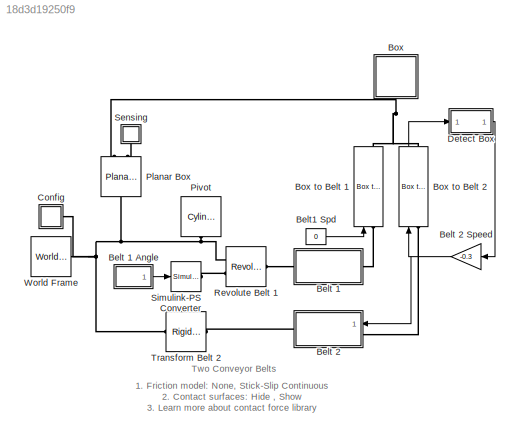
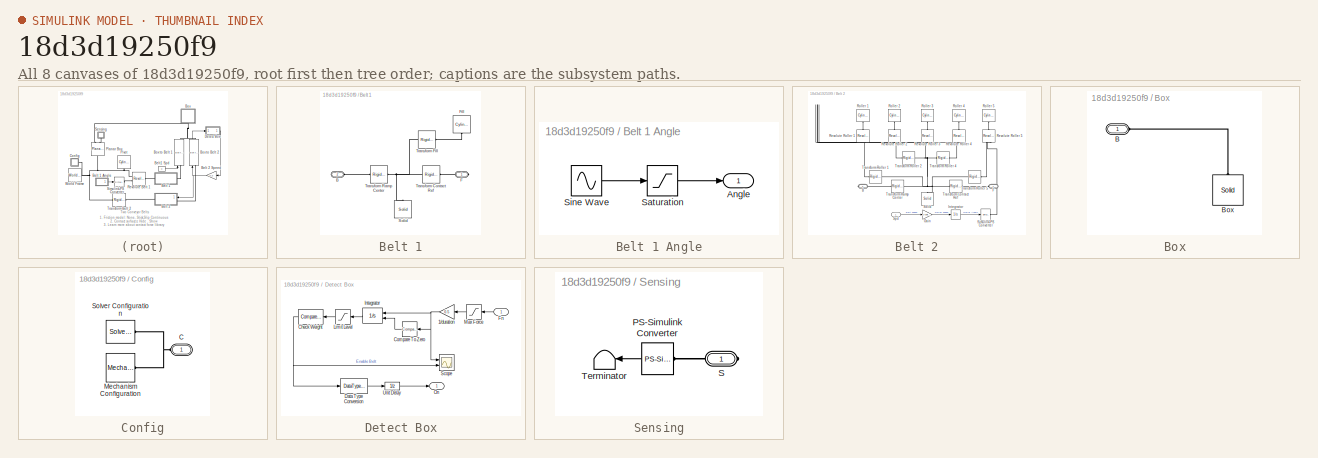
[diagram: thumbnail index - all 8 canvases of the model, root first then tree order]
MODEL slx_18d3d19250f9
KIND model
CONFIG AbsTol = 1e-5
CONFIG FixedStep = auto
CONFIG MaxStep = 1e-2
CONFIG MinStep = auto
CONFIG RelTol = 1e-3
CONFIG SampleTimeConstraint = Unconstrained
CONFIG Solver = ode23t
CONFIG SolverMode = Auto
CONFIG SolverName = ode23t
CONFIG StartFcn = tic;
CONFIG StartTime = 0.0
CONFIG StopFcn = Elapsed_Sim_Time = toc;\ndisp(['Elapsed Sim Time = ' num2str(Elapsed_Sim_Time)]);\n
CONFIG StopTime = 20
WORKSPACE source: MATLAB code (in-file)
WORKSPACE code: box.l = 0.3;
WORKSPACE code: box.h = 0.1;
WORKSPACE code: box.w = 0.3;
WORKSPACE code: belt.l = 3;
WORKSPACE code: belt.h = 0.2;
WORKSPACE code: belt.w = 0.5;
BLOCK [SubSystem] Belt 1
  Ports = [0, 0, 0, 0, 0, 1, 1]
  RequestExecContextInheritance = off
  Tag = CustomStyle
  Variant = off
BLOCK [SubSystem] Belt 1 Angle
  Ports = [0, 1]
  RequestExecContextInheritance = off
  Variant = off
BLOCK [Outport] Belt 1 Angle/Angle
  IconDisplay = Port number
BLOCK [Saturate] Belt 1 Angle/Saturation
  InputPortMap = u0
  LowerLimit = 0
  Ports = [1, 1]
  UpperLimit = 25
BLOCK [Sin] Belt 1 Angle/Sine Wave
  Amplitude = 25
  Bias = 20
  Frequency = 0.3
  Phase = -pi/2
  Ports = [0, 1]
  SampleTime = 0
BLOCK [PMIOPort] Belt 1/B
  Port = 2
  Side = Left
BLOCK [PMIOPort] Belt 1/F
  Port = 1
  Side = Right
BLOCK [Reference] Belt 1/Fill  REF=Parts_Lib/Cylinder
  Ports = [0, 0, 0, 0, 0, 1]
  SourceBlock = Parts_Lib/Cylinder
  SourceType = Solid Cylinder with Markings
  Tag = CustomStyle
BLOCK [Reference] Belt 1/Solid  REF=sm_lib/Body Elements/Solid
  Ports = [0, 0, 0, 0, 0, 0, 1]
  SourceBlock = sm_lib/Body Elements/Solid
  SourceType = Solid
BLOCK [Reference] Belt 1/Transform Contact Ref  REF=sm_lib/Frames and
Transforms/Rigid
Transform
  Ports = [0, 0, 0, 0, 0, 1, 1]
  SourceBlock = sm_lib/Frames and\nTransforms/Rigid\nTransform
  SourceType = Rigid\nTransform
BLOCK [Reference] Belt 1/Transform Fill  REF=sm_lib/Frames and
Transforms/Rigid
Transform
  Ports = [0, 0, 0, 0, 0, 1, 1]
  SourceBlock = sm_lib/Frames and\nTransforms/Rigid\nTransform
  SourceType = Rigid\nTransform
BLOCK [Reference] Belt 1/Transform Ramp Center  REF=sm_lib/Frames and
Transforms/Rigid
Transform
  Ports = [0, 0, 0, 0, 0, 1, 1]
  SourceBlock = sm_lib/Frames and\nTransforms/Rigid\nTransform
  SourceType = Rigid\nTransform
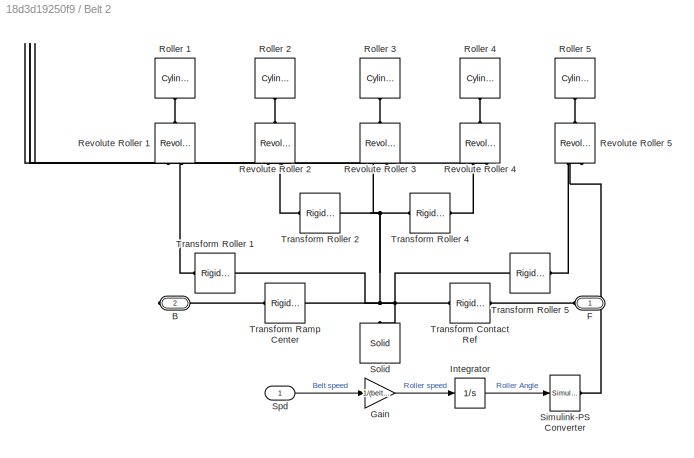
BLOCK [SubSystem] Belt 2
  Ports = [1, 0, 0, 0, 0, 1, 1]
  RequestExecContextInheritance = off
  Tag = CustomStyle
  Variant = off
BLOCK [Gain] Belt 2 Speed
  Gain = -0.3
  OutDataTypeStr = Inherit: Inherit via internal rule
  ParamDataTypeStr = Inherit: Inherit via internal rule
  SaturateOnIntegerOverflow = off
BLOCK [PMIOPort] Belt 2/B
  Port = 2
  Side = Right
BLOCK [PMIOPort] Belt 2/F
  Port = 1
  Side = Left
BLOCK [Gain] Belt 2/Gain
  Gain = 1/(belt.h/2*0.8)
  OutDataTypeStr = Inherit: Inherit via internal rule
  ParamDataTypeStr = Inherit: Inherit via internal rule
  SaturateOnIntegerOverflow = off
BLOCK [Integrator] Belt 2/Integrator
  Ports = [1, 1]
BLOCK [Reference] Belt 2/Revolute Roller 1  REF=sm_lib/Joints/Revolute Joint
  Ports = [0, 0, 0, 0, 0, 2, 1]
  SourceBlock = sm_lib/Joints/Revolute Joint
  SourceType = Revolute Joint
BLOCK [Reference] Belt 2/Revolute Roller 2  REF=sm_lib/Joints/Revolute Joint
  Ports = [0, 0, 0, 0, 0, 2, 1]
  SourceBlock = sm_lib/Joints/Revolute Joint
  SourceType = Revolute Joint
BLOCK [Reference] Belt 2/Revolute Roller 3  REF=sm_lib/Joints/Revolute Joint
  Ports = [0, 0, 0, 0, 0, 2, 1]
  SourceBlock = sm_lib/Joints/Revolute Joint
  SourceType = Revolute Joint
BLOCK [Reference] Belt 2/Revolute Roller 4  REF=sm_lib/Joints/Revolute Joint
  Ports = [0, 0, 0, 0, 0, 2, 1]
  SourceBlock = sm_lib/Joints/Revolute Joint
  SourceType = Revolute Joint
BLOCK [Reference] Belt 2/Revolute Roller 5  REF=sm_lib/Joints/Revolute Joint
  Ports = [0, 0, 0, 0, 0, 2, 1]
  SourceBlock = sm_lib/Joints/Revolute Joint
  SourceType = Revolute Joint
BLOCK [Reference] Belt 2/Roller 1  REF=Parts_Lib/Cylinder
  Ports = [0, 0, 0, 0, 0, 1]
  SourceBlock = Parts_Lib/Cylinder
  SourceType = Solid Cylinder with Markings
  Tag = CustomStyle
BLOCK [Reference] Belt 2/Roller 2  REF=Parts_Lib/Cylinder
  Ports = [0, 0, 0, 0, 0, 1]
  SourceBlock = Parts_Lib/Cylinder
  SourceType = Solid Cylinder with Markings
  Tag = CustomStyle
BLOCK [Reference] Belt 2/Roller 3  REF=Parts_Lib/Cylinder
  Ports = [0, 0, 0, 0, 0, 1]
  SourceBlock = Parts_Lib/Cylinder
  SourceType = Solid Cylinder with Markings
  Tag = CustomStyle
BLOCK [Reference] Belt 2/Roller 4  REF=Parts_Lib/Cylinder
  Ports = [0, 0, 0, 0, 0, 1]
  SourceBlock = Parts_Lib/Cylinder
  SourceType = Solid Cylinder with Markings
  Tag = CustomStyle
BLOCK [Reference] Belt 2/Roller 5  REF=Parts_Lib/Cylinder
  Ports = [0, 0, 0, 0, 0, 1]
  SourceBlock = Parts_Lib/Cylinder
  SourceType = Solid Cylinder with Markings
  Tag = CustomStyle
BLOCK [Reference] Belt 2/Simulink-PS Converter  REF=nesl_utility/Simulink-PS
Converter
  Ports = [1, 0, 0, 0, 0, 0, 1]
  SourceBlock = nesl_utility/Simulink-PS\nConverter
  SourceType = Simulink-PS\nConverter
BLOCK [Reference] Belt 2/Solid  REF=sm_lib/Body Elements/Solid
  Ports = [0, 0, 0, 0, 0, 0, 1]
  SourceBlock = sm_lib/Body Elements/Solid
  SourceType = Solid
BLOCK [Inport] Belt 2/Spd
  IconDisplay = Port number
BLOCK [Reference] Belt 2/Transform Contact Ref  REF=sm_lib/Frames and
Transforms/Rigid
Transform
  Ports = [0, 0, 0, 0, 0, 1, 1]
  SourceBlock = sm_lib/Frames and\nTransforms/Rigid\nTransform
  SourceType = Rigid\nTransform
BLOCK [Reference] Belt 2/Transform Ramp Center  REF=sm_lib/Frames and
Transforms/Rigid
Transform
  Ports = [0, 0, 0, 0, 0, 1, 1]
  SourceBlock = sm_lib/Frames and\nTransforms/Rigid\nTransform
  SourceType = Rigid\nTransform
BLOCK [Reference] Belt 2/Transform Roller 1  REF=sm_lib/Frames and
Transforms/Rigid
Transform
  Ports = [0, 0, 0, 0, 0, 1, 1]
  SourceBlock = sm_lib/Frames and\nTransforms/Rigid\nTransform
  SourceType = Rigid\nTransform
BLOCK [Reference] Belt 2/Transform Roller 2  REF=sm_lib/Frames and
Transforms/Rigid
Transform
  Ports = [0, 0, 0, 0, 0, 1, 1]
  SourceBlock = sm_lib/Frames and\nTransforms/Rigid\nTransform
  SourceType = Rigid\nTransform
BLOCK [Reference] Belt 2/Transform Roller 4  REF=sm_lib/Frames and
Transforms/Rigid
Transform
  Ports = [0, 0, 0, 0, 0, 1, 1]
  SourceBlock = sm_lib/Frames and\nTransforms/Rigid\nTransform
  SourceType = Rigid\nTransform
BLOCK [Reference] Belt 2/Transform Roller 5  REF=sm_lib/Frames and
Transforms/Rigid
Transform
  Ports = [0, 0, 0, 0, 0, 1, 1]
  SourceBlock = sm_lib/Frames and\nTransforms/Rigid\nTransform
  SourceType = Rigid\nTransform
BLOCK [Constant] Belt1 Spd
  Value = 0
BLOCK [SubSystem] Box
  Ports = [0, 0, 0, 0, 0, 1]
  RequestExecContextInheritance = off
  Tag = CustomStyle
  Variant = off
BLOCK [Reference] Box to Belt 1  REF=Contact_Forces_Lib/2D/Composite
Forces/Box to Belt Force
  Ports = [1, 1, 0, 0, 0, 1, 1]
  SourceBlock = Contact_Forces_Lib/2D/Composite\nForces/Box to Belt Force
  SourceType = Box to Belt Contact Force
BLOCK [Reference] Box to Belt 2  REF=Contact_Forces_Lib/2D/Composite
Forces/Box to Belt Force
  Ports = [1, 1, 0, 0, 0, 1, 1]
  SourceBlock = Contact_Forces_Lib/2D/Composite\nForces/Box to Belt Force
  SourceType = Box to Belt Contact Force
BLOCK [PMIOPort] Box/B
  Port = 1
  Side = Left
BLOCK [Reference] Box/Box  REF=sm_lib/Body Elements/Solid
  Ports = [0, 0, 0, 0, 0, 0, 1]
  SourceBlock = sm_lib/Body Elements/Solid
  SourceType = Solid
BLOCK [SubSystem] Config
  Ports = [0, 0, 0, 0, 0, 1]
  RequestExecContextInheritance = off
  Variant = off
BLOCK [PMIOPort] Config/C
  Port = 1
  Side = Left
BLOCK [Reference] Config/Mechanism Configuration  REF=sm_lib/Utilities/Mechanism
Configuration
  Ports = [0, 0, 0, 0, 0, 0, 1]
  SourceBlock = sm_lib/Utilities/Mechanism\nConfiguration
  SourceType = Mechanism\nConfiguration
BLOCK [Reference] Config/Solver Configuration  REF=nesl_utility/Solver
Configuration
  Ports = [0, 0, 0, 0, 0, 0, 1]
  SourceBlock = nesl_utility/Solver\nConfiguration
  SourceType = Solver\nConfiguration
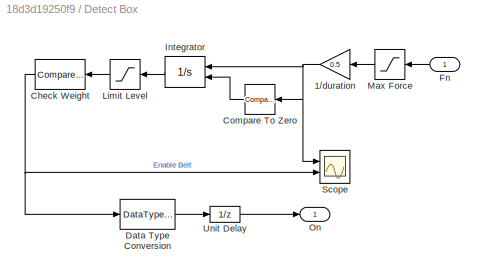
BLOCK [SubSystem] Detect Box
  Ports = [1, 1]
  RequestExecContextInheritance = off
  Variant = off
BLOCK [Gain] Detect Box/1//duration
  Gain = 0.5
  OutDataTypeStr = Inherit: Inherit via internal rule
  ParamDataTypeStr = Inherit: Inherit via internal rule
  SaturateOnIntegerOverflow = off
BLOCK [Reference] Detect Box/Check Weight  REF=simulink/Logic and Bit
Operations/Compare
To Constant
  Ports = [1, 1]
  SourceBlock = simulink/Logic and Bit\nOperations/Compare\nTo Constant
  SourceType = Compare To Constant
BLOCK [Reference] Detect Box/Compare To Zero  REF=simulink/Logic and Bit
Operations/Compare
To Zero
  Ports = [1, 1]
  SourceBlock = simulink/Logic and Bit\nOperations/Compare\nTo Zero
  SourceType = Compare To Zero
BLOCK [DataTypeConversion] Detect Box/Data Type Conversion
  OutDataTypeStr = double
  RndMeth = Floor
  SaturateOnIntegerOverflow = off
BLOCK [Inport] Detect Box/Fn
  IconDisplay = Port number
BLOCK [Integrator] Detect Box/Integrator
  ExternalReset = either
  Ports = [2, 1]
BLOCK [Saturate] Detect Box/Limit Level
  InputPortMap = u0
  LowerLimit = 0
  Ports = [1, 1]
  UpperLimit = box_weight
  ZeroCross = off
BLOCK [Saturate] Detect Box/Max Force
  InputPortMap = u0
  LowerLimit = 0
  Ports = [1, 1]
  UpperLimit = box_weight
BLOCK [Outport] Detect Box/On
  IconDisplay = Port number
BLOCK [Scope] Detect Box/Scope
  NumInputPorts = 2
  Ports = [2]
  ScopeSpecificationString = Simulink.scopes.TimeScopeBlockCfg('CurrentConfiguration', extmgr.ConfigurationSet(extmgr.Configuration('Core','General UI',true),extmgr.Configuration('Core','Source UI',true),extmgr.Configuration('Sources','WiredSimulink',true,'DataLoggingVariableName','ScopeData2','DataLoggingLimitDataPoints',true,'DataLoggingSaveFormat','Array','DataLoggingDecimation','1','DataLoggingDecimateData',true),extmgr.C...<+2365ch>
BLOCK [UnitDelay] Detect Box/Unit Delay
  InputProcessing = Elements as channels (sample based)
  SampleTime = 0.1
BLOCK [Reference] Pivot  REF=Parts_Lib/Cylinder
  Ports = [0, 0, 0, 0, 0, 1]
  SourceBlock = Parts_Lib/Cylinder
  SourceType = Solid Cylinder with Markings
  Tag = CustomStyle
BLOCK [Reference] Planar Box  REF=sm_lib/Joints/Planar Joint
  Ports = [0, 0, 0, 0, 0, 1, 2]
  SourceBlock = sm_lib/Joints/Planar Joint
  SourceType = Planar Joint
BLOCK [Reference] Revolute Belt 1  REF=sm_lib/Joints/Revolute Joint
  Ports = [0, 0, 0, 0, 0, 2, 1]
  SourceBlock = sm_lib/Joints/Revolute Joint
  SourceType = Revolute Joint
BLOCK [SubSystem] Sensing
  Ports = [0, 0, 0, 0, 0, 0, 1]
  RequestExecContextInheritance = off
  Variant = off
BLOCK [Reference] Sensing/PS-Simulink Converter  REF=nesl_utility/PS-Simulink
Converter
  Ports = [0, 1, 0, 0, 0, 1]
  SourceBlock = nesl_utility/PS-Simulink\nConverter
  SourceType = PS-Simulink\nConverter
BLOCK [PMIOPort] Sensing/S
  Port = 1
  Side = Right
BLOCK [Terminator] Sensing/Terminator
BLOCK [Reference] Simulink-PS Converter  REF=nesl_utility/Simulink-PS
Converter
  Ports = [1, 0, 0, 0, 0, 0, 1]
  SourceBlock = nesl_utility/Simulink-PS\nConverter
  SourceType = Simulink-PS\nConverter
BLOCK [Reference] Transform Belt 2  REF=sm_lib/Frames and
Transforms/Rigid
Transform
  Ports = [0, 0, 0, 0, 0, 1, 1]
  SourceBlock = sm_lib/Frames and\nTransforms/Rigid\nTransform
  SourceType = Rigid\nTransform
BLOCK [Reference] World Frame  REF=sm_lib/Frames and
Transforms/World Frame
  Ports = [0, 0, 0, 0, 0, 0, 1]
  SourceBlock = sm_lib/Frames and\nTransforms/World Frame
  SourceType = World Frame
ANNOTATION (root): 1. Friction model: None , Stick-Slip Continuous 2. Contact surfaces: Hide , Show 3. Learn more about contact force library
ANNOTATION (root): Two Conveyor Belts
LINE Belt 1 Angle/Saturation:1 -> Belt 1 Angle/Angle:1
LINE Belt 1 Angle/Sine Wave:1 -> Belt 1 Angle/Saturation:1
LINE Belt 1 Angle:1 -> Simulink-PS Converter:1
NET Belt 2 Speed:1 -> Belt 2:1, Box to Belt 2:1
LINE Belt 2/Gain:1 -> Belt 2/Integrator:1
LINE Belt 2/Integrator:1 -> Belt 2/Simulink-PS Converter:1
LINE Belt 2/Spd:1 -> Belt 2/Gain:1
LINE Belt1 Spd:1 -> Box to Belt 1:1
LINE Box to Belt 2:1 -> Detect Box:1
NET Detect Box/1//duration:1 -> Detect Box/Compare To Zero:1, Detect Box/Integrator:1, Detect Box/Scope:1
NET Detect Box/Check Weight:1 -> Detect Box/Data Type Conversion:1, Detect Box/Scope:2
LINE Detect Box/Compare To Zero:1 -> Detect Box/Integrator:2
LINE Detect Box/Data Type Conversion:1 -> Detect Box/Unit Delay:1
LINE Detect Box/Fn:1 -> Detect Box/Max Force:1
LINE Detect Box/Integrator:1 -> Detect Box/Limit Level:1
LINE Detect Box/Limit Level:1 -> Detect Box/Check Weight:1
LINE Detect Box/Max Force:1 -> Detect Box/1//duration:1
LINE Detect Box/Unit Delay:1 -> Detect Box/On:1
LINE Detect Box:1 -> Belt 2 Speed:1
LINE Sensing/PS-Simulink Converter:1 -> Sensing/Terminator:1
PLINE Belt 1/B:RConn1 -- Belt 1/Transform Ramp Center:LConn1
PLINE Belt 1/F:RConn1 -- Belt 1/Transform Contact Ref:RConn1
PLINE Belt 1/Fill:LConn1 -- Belt 1/Transform Fill:RConn1
PNET net1: Belt 1/Solid:RConn1 -- Belt 1/Transform Contact Ref:LConn1 -- Belt 1/Transform Fill:LConn1 -- Belt 1/Transform Ramp Center:RConn1
PLINE Belt 1:LConn1 -- Revolute Belt 1:RConn1
PLINE Belt 1:RConn1 -- Box to Belt 1:LConn1
PLINE Belt 2/B:RConn1 -- Belt 2/Transform Ramp Center:LConn1
PLINE Belt 2/F:RConn1 -- Belt 2/Transform Contact Ref:RConn1
PLINE Belt 2/Revolute Roller 1:LConn1 -- Belt 2/Transform Roller 1:RConn1
PNET net2: Belt 2/Revolute Roller 1:LConn2 -- Belt 2/Revolute Roller 2:LConn2 -- Belt 2/Revolute Roller 3:LConn2 -- Belt 2/Revolute Roller 4:LConn2 -- Belt 2/Revolute Roller 5:LConn2 -- Belt 2/Simulink-PS Converter:RConn1
PLINE Belt 2/Revolute Roller 1:RConn1 -- Belt 2/Roller 1:LConn1
PLINE Belt 2/Revolute Roller 2:LConn1 -- Belt 2/Transform Roller 2:RConn1
PLINE Belt 2/Revolute Roller 2:RConn1 -- Belt 2/Roller 2:LConn1
PNET net3: Belt 2/Revolute Roller 3:LConn1 -- Belt 2/Solid:RConn1 -- Belt 2/Transform Contact Ref:LConn1 -- Belt 2/Transform Ramp Center:RConn1 -- Belt 2/Transform Roller 1:LConn1 -- Belt 2/Transform Roller 2:LConn1 -- Belt 2/Transform Roller 4:LConn1 -- Belt 2/Transform Roller 5:LConn1
PLINE Belt 2/Revolute Roller 3:RConn1 -- Belt 2/Roller 3:LConn1
PLINE Belt 2/Revolute Roller 4:LConn1 -- Belt 2/Transform Roller 4:RConn1
PLINE Belt 2/Revolute Roller 4:RConn1 -- Belt 2/Roller 4:LConn1
PLINE Belt 2/Revolute Roller 5:LConn1 -- Belt 2/Transform Roller 5:RConn1
PLINE Belt 2/Revolute Roller 5:RConn1 -- Belt 2/Roller 5:LConn1
PLINE Belt 2:LConn1 -- Box to Belt 2:LConn1
PLINE Belt 2:RConn1 -- Transform Belt 2:RConn1
PNET net4: Box to Belt 1:RConn1 -- Box to Belt 2:RConn1 -- Box:LConn1 -- Planar Box:RConn1
PLINE Box/B:RConn1 -- Box/Box:RConn1
PNET net5: Config/C:RConn1 -- Config/Mechanism Configuration:RConn1 -- Config/Solver Configuration:RConn1
PNET net6: Config:LConn1 -- Pivot:LConn1 -- Planar Box:LConn1 -- Revolute Belt 1:LConn1 -- Transform Belt 2:LConn1 -- World Frame:RConn1
PLINE Planar Box:RConn2 -- Sensing:RConn1
PLINE Revolute Belt 1:LConn2 -- Simulink-PS Converter:RConn1
PLINE Sensing/PS-Simulink Converter:LConn1 -- Sensing/S:RConn1
note: NET lines group one-source signal fan-out (src -> all destinations, sorted); 1:1 wires keep LINE; PNET lines group multi-terminal physical nets as a canonical sorted terminal list (undirected conserving connections); 2-terminal nets keep the pairwise PLINE form
